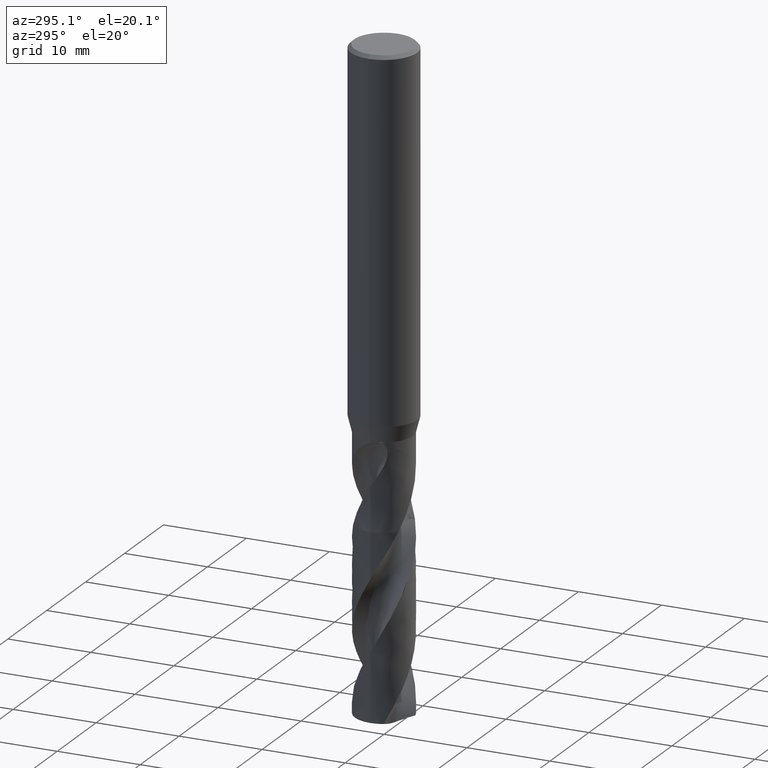
[diagram: clean part render]
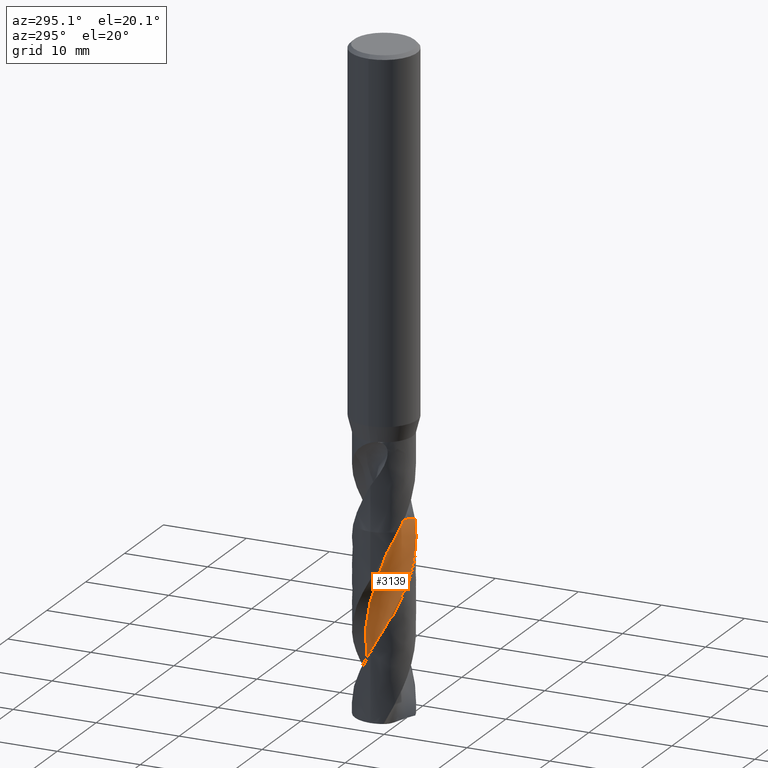
[diagram: same view with one face highlighted and labeled with its STEP entity id]
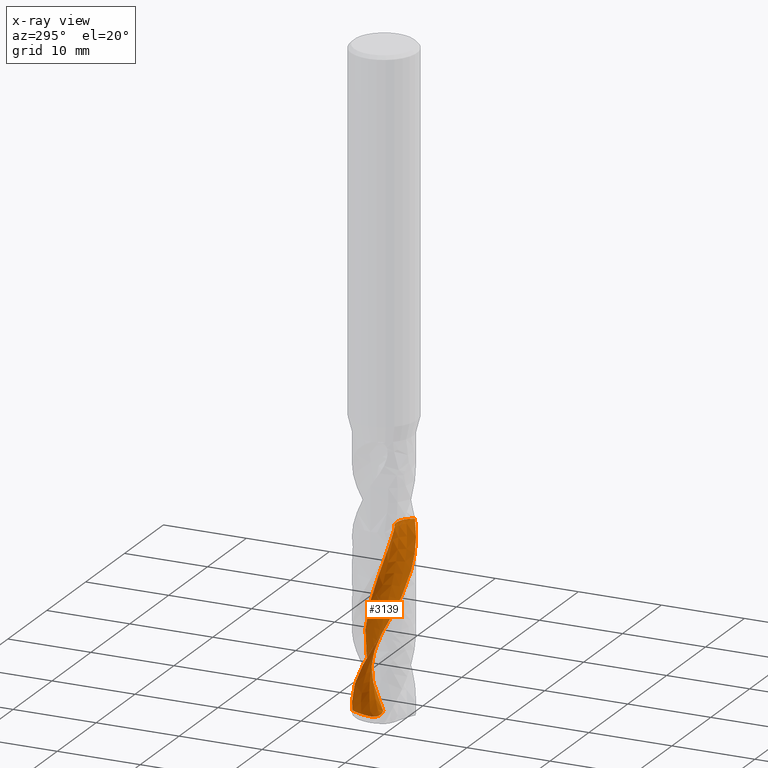
[diagram: x-ray of the same camera — body ghosted, the highlighted face saturated]
A machine part, auxiliary view. The second image highlights one B-rep face of the part: STEP entity #3139.
The next image is the same camera in x-ray: the body ghosted, the highlighted face saturated — about 0% of this face is hidden behind the body in this view.
In plain terms, the highlighted face is a freeform B-spline surface patch.
Its self-contained STEP definition (entity closure, byte-faithful):
#1687 = VERTEX_POINT('', #1688);
#1688 = CARTESIAN_POINT('', (-1.046951420476, -1.81512449101257, -55.5));
#1694 = EDGE_CURVE('', #1687, #1695, #1697, .T.);
#1695 = VERTEX_POINT('', #1696);
#1696 = CARTESIAN_POINT('', (2.27351250297305, -2.66104131851146, -55.5));
#1697 = B_SPLINE_CURVE_WITH_KNOTS('', 3, (#1698, #1699, #1700, #1701, #1702, #1703, #1704, #1705, #1706, #1707, #1708, #1709, #1710, #1711, #1712, #1713, #1714, #1715, #1716, #1717, #1718, #1719, #1720, #1721, #1722, #1723, #1724, #1725, #1726, #1727, #1728, #1729, #1730, #1731, #1732, #1733, #1734, #1735, #1736, #1737, #1738, #1739, #1740, #1741, #1742, #1743, #1744, #1745, #1746, #1747, #1748, #1749, #1750, #1751, #1752, #1753, #1754, #1755, #1756, #1757, #1758, #1759, #1760, #1761, #1762, #1763, #1764), .UNSPECIFIED., .F., .U., (4, 3, 3, 3, 3, 3, 3, 3, 3, 3, 3, 3, 3, 3, 3, 3, 3, 3, 3, 3, 3, 3, 4), (0., 0.198193263042199, 0.396153726300257, 0.593886962469287, 0.791397362451865, 0.988688222865556, 1.18576181065397, 1.38261940752312, 1.57926133604613, 1.77568696853248, 1.97189471908936, 2.01077654881468, 2.0367333169394, 2.23490098607553, 2.43283652115598, 2.63054536150199, 2.82803177536099, 3.02529894476461, 3.22234902783383, 3.41918320114924, 3.61580168394313, 3.81220374513392, 4.00604219358213), .UNSPECIFIED.);
#1698 = CARTESIAN_POINT('', (-1.046951420476, -1.81512449101257, -55.5));
#1699 = CARTESIAN_POINT('', (-0.996622528766035, -1.7723283418497, -55.5));
#1700 = CARTESIAN_POINT('', (-0.944213754496615, -1.73186481295462, -55.5));
#1701 = CARTESIAN_POINT('', (-0.890074604069016, -1.69400374964544, -55.5));
#1702 = CARTESIAN_POINT('', (-0.835999046027654, -1.65618715831897, -55.5));
#1703 = CARTESIAN_POINT('', (-0.780077188562678, -1.62088299294674, -55.5));
#1704 = CARTESIAN_POINT('', (-0.722681092174954, -1.58832613995863, -55.5));
#1705 = CARTESIAN_POINT('', (-0.665350877366253, -1.55580665705347, -55.5));
#1706 = CARTESIAN_POINT('', (-0.606422889559742, -1.52595617399591, -55.5));
#1707 = CARTESIAN_POINT('', (-0.546288291668799, -1.49897283775064, -55.5));
#1708 = CARTESIAN_POINT('', (-0.486221462680683, -1.47201991047385, -55.5));
#1709 = CARTESIAN_POINT('', (-0.424818065480778, -1.44786812052555, -55.5));
#1710 = CARTESIAN_POINT('', (-0.362484778061942, -1.42667742650586, -55.5));
#1711 = CARTESIAN_POINT('', (-0.300220776225276, -1.40551028666777, -55.5));
#1712 = CARTESIAN_POINT('', (-0.236891725365652, -1.38725099697157, -55.5));
#1713 = CARTESIAN_POINT('', (-0.172916126815252, -1.37202022142469, -55.5));
#1714 = CARTESIAN_POINT('', (-0.109010983359535, -1.3568062192376, -55.5));
#1715 = CARTESIAN_POINT('', (-0.0443201823901802, -1.34458059203248, -55.5));
#1716 = CARTESIAN_POINT('', (0.0207297153485082, -1.33542395363018, -55.5));
#1717 = CARTESIAN_POINT('', (0.0857083189712843, -1.32627735082305, -55.5));
#1718 = CARTESIAN_POINT('', (0.151187814939867, -1.32017292798672, -55.5));
#1719 = CARTESIAN_POINT('', (0.216737386321088, -1.31715084866685, -55.5));
#1720 = CARTESIAN_POINT('', (0.282215144534442, -1.31413208020142, -55.5));
#1721 = CARTESIAN_POINT('', (0.34790618952166, -1.3141822807506, -55.5));
#1722 = CARTESIAN_POINT('', (0.413379257425773, -1.31730112074613, -55.5));
#1723 = CARTESIAN_POINT('', (0.478780308312954, -1.32041653017762, -55.5));
#1724 = CARTESIAN_POINT('', (0.54410674561694, -1.32660062364291, -55.5));
#1725 = CARTESIAN_POINT('', (0.60893064055001, -1.3358128914842, -55.5));
#1726 = CARTESIAN_POINT('', (0.673682630634796, -1.34501494076763, -55.5));
#1727 = CARTESIAN_POINT('', (0.738074347710555, -1.35725849513149, -55.5));
#1728 = CARTESIAN_POINT('', (0.801684919704056, -1.3724635292194, -55.5));
#1729 = CARTESIAN_POINT('', (0.814290412718281, -1.37547665966249, -55.5));
#1730 = CARTESIAN_POINT('', (0.826868549943651, -1.37860662221833, -55.5));
#1731 = CARTESIAN_POINT('', (0.839416097829345, -1.38185261224526, -55.5));
#1732 = CARTESIAN_POINT('', (0.847792601540809, -1.38401957329261, -55.5));
#1733 = CARTESIAN_POINT('', (0.856155872862537, -1.38623834454429, -55.5));
#1734 = CARTESIAN_POINT('', (0.864504953579739, -1.38850867178646, -55.5));
#1735 = CARTESIAN_POINT('', (0.928246242834551, -1.40584154834474, -55.5));
#1736 = CARTESIAN_POINT('', (0.991238748929512, -1.42620778868461, -55.5));
#1737 = CARTESIAN_POINT('', (1.05306249242292, -1.44947160836477, -55.5));
#1738 = CARTESIAN_POINT('', (1.11481381544342, -1.47270817675396, -55.5));
#1739 = CARTESIAN_POINT('', (1.17553611147196, -1.49888707438941, -55.5));
#1740 = CARTESIAN_POINT('', (1.23482548319853, -1.52783417105826, -55.5));
#1741 = CARTESIAN_POINT('', (1.29404695105744, -1.55674811473924, -55.5));
#1742 = CARTESIAN_POINT('', (1.35196986084809, -1.58848790329939, -55.5));
#1743 = CARTESIAN_POINT('', (1.40820981605862, -1.62284290049731, -55.5));
#1744 = CARTESIAN_POINT('', (1.46438650016986, -1.65715924762109, -55.5));
#1745 = CARTESIAN_POINT('', (1.51900808164713, -1.6941606926302, -55.5));
#1746 = CARTESIAN_POINT('', (1.57171288654245, -1.7336022323897, -55.5));
#1747 = CARTESIAN_POINT('', (1.62435917988744, -1.77299998514261, -55.5));
#1748 = CARTESIAN_POINT('', (1.67520896373518, -1.81491921734901, -55.5));
#1749 = CARTESIAN_POINT('', (1.72392628483998, -1.85908297793752, -55.5));
#1750 = CARTESIAN_POINT('', (1.77258999406048, -1.9031981376923, -55.5));
#1751 = CARTESIAN_POINT('', (1.81923293437107, -1.94964986980913, -55.5));
#1752 = CARTESIAN_POINT('', (1.86354762295835, -1.99813195197048, -55.5));
#1753 = CARTESIAN_POINT('', (1.90781375549656, -2.04656091182778, -55.5));
#1754 = CARTESIAN_POINT('', (1.94985385795757, -2.09712200855222, -55.5));
#1755 = CARTESIAN_POINT('', (1.98939139667252, -2.14948265861613, -55.5));
#1756 = CARTESIAN_POINT('', (2.02888561022597, -2.20178593197696, -55.5));
#1757 = CARTESIAN_POINT('', (2.06596920661062, -2.25599930036608, -55.5));
#1758 = CARTESIAN_POINT('', (2.10039878876026, -2.3117669359755, -55.5));
#1759 = CARTESIAN_POINT('', (2.13479047363159, -2.36747318711623, -55.5));
#1760 = CARTESIAN_POINT('', (2.16660911478858, -2.42485195189315, -55.5));
#1761 = CARTESIAN_POINT('', (2.19564633028439, -2.48352745377164, -55.5));
#1762 = CARTESIAN_POINT('', (2.22430452646033, -2.5414370713036, -55.5));
#1763 = CARTESIAN_POINT('', (2.25031515757431, -2.6007344860766, -55.5));
#1764 = CARTESIAN_POINT('', (2.27351250036778, -2.66104131951358, -55.5));
#2007 = VERTEX_POINT('', #2008);
#2008 = CARTESIAN_POINT('', (1.86289702991476, 0.95960238742683, -78.2372915301283));
#2036 = EDGE_CURVE('', #2007, #1687, #2037, .T.);
#2037 = (
   BOUNDED_CURVE ()
   B_SPLINE_CURVE (3, (#2038, #2039, #2040, #2041, #2042, #2043, #2044, #2045, #2046, #2047, #2048, #2049, #2050, #2051, #2052, #2053, #2054, #2055, #2056, #2057, #2058, #2059, #2060, #2061, #2062, #2063, #2064, #2065, #2066, #2067, #2068, #2069, #2070, #2071, #2072, #2073, #2074, #2075, #2076), .UNSPECIFIED., .F., .U.)
   B_SPLINE_CURVE_WITH_KNOTS ((4, 1, 1, 1, 1, 1, 1, 1, 1, 1, 1, 1, 1, 1, 1, 1, 1, 1, 1, 1, 1, 1, 1, 1, 1, 1, 1, 1, 1, 1, 1, 1, 1, 1, 1, 1, 4), (0.81270846987174, 1.28490566037736, 1.92735849056604, 2.56981132075472, 3.2122641509434, 3.85471698113207, 4.49716981132075, 5.13962264150943, 5.78207547169811, 6.42452830188679, 7.06698113207547, 7.70943396226415, 8.35188679245283, 8.99433962264151, 9.63679245283019, 10.2792452830189, 10.9216981132075, 11.5641509433962, 12.2066037735849, 12.8490566037736, 13.4915094339623, 14.1339622641509, 14.7764150943396, 15.4188679245283, 16.061320754717, 16.7037735849057, 17.3462264150943, 17.988679245283, 18.6311320754717, 19.2735849056604, 19.9160377358491, 20.5584905660377, 21.2009433962264, 21.8433962264151, 22.4858490566038, 23.1283018867924, 23.55), .UNSPECIFIED.)
   CURVE ()
   GEOMETRIC_REPRESENTATION_ITEM ()
   RATIONAL_B_SPLINE_CURVE ((1., 1., 1., 1., 1., 1., 1., 1., 1., 1., 1., 1., 1., 1., 1., 1., 1., 1., 1., 1., 1., 1., 1., 1., 1., 1., 1., 1., 1., 1., 1., 1., 1., 1., 1., 1., 1., 1., 1.))
   REPRESENTATION_ITEM ('')
);
#2038 = CARTESIAN_POINT('', (1.86289702991476, 0.959602387426832, -78.2372915301283));
#2039 = CARTESIAN_POINT('', (1.83704920662887, 1.00688443852683, -78.0798924666264));
#2040 = CARTESIAN_POINT('', (1.77184820781061, 1.11606973005743, -77.7083424597283));
#2041 = CARTESIAN_POINT('', (1.65420540262695, 1.27800430281574, -77.122641509434));
#2042 = CARTESIAN_POINT('', (1.50783877451623, 1.44095037962767, -76.4801886792453));
#2043 = CARTESIAN_POINT('', (1.34577054116702, 1.58756373258715, -75.8377358490566));
#2044 = CARTESIAN_POINT('', (1.16978095045441, 1.71636895656266, -75.1952830188679));
#2045 = CARTESIAN_POINT('', (0.981783968663531, 1.82607944599685, -74.5528301886793));
#2046 = CARTESIAN_POINT('', (0.783808890857222, 1.9156100702152, -73.9103773584906));
#2047 = CARTESIAN_POINT('', (0.577979299252018, 1.98408682329468, -73.2679245283019));
#2048 = CARTESIAN_POINT('', (0.366491666945983, 2.03085467587675, -72.6254716981132));
#2049 = CARTESIAN_POINT('', (0.151593245873243, 2.0554832201279, -71.9830188679245));
#2050 = CARTESIAN_POINT('', (-0.0644404046662435, 2.05777016138579, -71.3405660377358));
#2051 = CARTESIAN_POINT('', (-0.279328081799948, 2.03774261028639, -70.6981132075472));
#2052 = CARTESIAN_POINT('', (-0.49080557652085, 1.9956561800751, -70.0556603773585));
#2053 = CARTESIAN_POINT('', (-0.696648081155714, 1.93199190421249, -69.4132075471698));
#2054 = CARTESIAN_POINT('', (-0.89469216253526, 1.84745101034328, -68.7707547169811));
#2055 = CARTESIAN_POINT('', (-1.08285710208653, 1.74294760436103, -68.1283018867925));
#2056 = CARTESIAN_POINT('', (-1.25916540991783, 1.61959933622045, -67.4858490566038));
#2057 = CARTESIAN_POINT('', (-1.42176232764968, 1.47871613622041, -66.8433962264151));
#2058 = CARTESIAN_POINT('', (-1.56893414377479, 1.32178712685008, -66.2009433962264));
#2059 = CARTESIAN_POINT('', (-1.69912515575136, 1.15046583077931, -65.5584905660377));
#2060 = CARTESIAN_POINT('', (-1.81095312474061, 0.966553810093789, -64.9160377358491));
#2061 = CARTESIAN_POINT('', (-1.90322308181562, 0.771982885326506, -64.2735849056604));
#2062 = CARTESIAN_POINT('', (-1.97493935850522, 0.568796095113638, -63.6311320754717));
#2063 = CARTESIAN_POINT('', (-2.02531572959262, 0.359127568365377, -62.988679245283));
#2064 = CARTESIAN_POINT('', (-2.0537835720822, 0.145181490439252, -62.3462264150943));
#2065 = CARTESIAN_POINT('', (-2.05999796099643, -0.0707896465064805, -61.7037735849057));
#2066 = CARTESIAN_POINT('', (-2.04384164034007, -0.286507313438294, -61.061320754717));
#2067 = CARTESIAN_POINT('', (-2.00542682498564, -0.499689528352486, -60.4188679245283));
#2068 = CARTESIAN_POINT('', (-1.94509481025618, -0.708073564523542, -59.7764150943396));
#2069 = CARTESIAN_POINT('', (-1.86341337559702, -0.909438515305056, -59.133962264151));
#2070 = CARTESIAN_POINT('', (-1.76117202235919, -1.10162773111042, -58.4915094339623));
#2071 = CARTESIAN_POINT('', (-1.6393749758928, -1.28257008606988, -57.8490566037736));
#2072 = CARTESIAN_POINT('', (-1.49923238251942, -1.45030298841626, -57.2066037735849));
#2073 = CARTESIAN_POINT('', (-1.34214835455115, -1.60298529815981, -56.5641509433962));
#2074 = CARTESIAN_POINT('', (-1.18946174537938, -1.723371096473, -55.9952830188679));
#2075 = CARTESIAN_POINT('', (-1.08803180901297, -1.79006336527039, -55.6405660377358));
#2076 = CARTESIAN_POINT('', (-1.046951420476, -1.81512449101257, -55.5));
#3013 = EDGE_CURVE('', #1695, #3014, #3016, .T.);
#3014 = VERTEX_POINT('', #3015);
#3015 = CARTESIAN_POINT('', (1.42035455528917, -3.19884243708084, -57.2561173635629));
#3016 = B_SPLINE_CURVE_WITH_KNOTS('', 3, (#3017, #3018, #3019, #3020, #3021, #3022, #3023, #3024, #3025, #3026, #3027, #3028, #3029), .UNSPECIFIED., .F., .U., (4, 3, 3, 3, 4), (4.22108998884229, 4.68101404682923, 5.34566818876505, 6.01013429872997, 6.24777782940563), .UNSPECIFIED.);
#3017 = CARTESIAN_POINT('', (2.27351250297305, -2.66104131851146, -55.5));
#3018 = CARTESIAN_POINT('', (2.21528860404127, -2.71078604110272, -55.6328111025407));
#3019 = CARTESIAN_POINT('', (2.1554225569631, -2.75862565120701, -55.7656713950018));
#3020 = CARTESIAN_POINT('', (2.09407522129526, -2.80443380516588, -55.8984925763996));
#3021 = CARTESIAN_POINT('', (2.00541980081817, -2.87063294986047, -56.0904376308489));
#3022 = CARTESIAN_POINT('', (1.91360269459129, -2.932637352559, -56.2824406128461));
#3023 = CARTESIAN_POINT('', (1.81909616396088, -2.99013196134598, -56.474398680909));
#3024 = CARTESIAN_POINT('', (1.72461636941483, -3.04761030479446, -56.666302443655));
#3025 = CARTESIAN_POINT('', (1.62739646706819, -3.10061346637828, -56.8582689516835));
#3026 = CARTESIAN_POINT('', (1.52792948044926, -3.14887781642507, -57.0501911150378));
#3027 = CARTESIAN_POINT('', (1.49235552787094, -3.1661393597587, -57.1188312756577));
#3028 = CARTESIAN_POINT('', (1.4564895373403, -3.18279773110637, -57.1874750361504));
#3029 = CARTESIAN_POINT('', (1.42035455528923, -3.19884243708081, -57.2561173635627));
#3139 = ADVANCED_FACE('', (#3140), #3316, .T.);
#3140 = FACE_OUTER_BOUND('', #3141, .T.);
#3141 = EDGE_LOOP('', (#3142, #3143, #3144, #3264, #3279, #3315));
#3142 = ORIENTED_EDGE('', *, *, #1694, .F.);
#3143 = ORIENTED_EDGE('', *, *, #2036, .F.);
#3144 = ORIENTED_EDGE('', *, *, #3145, .T.);
#3145 = EDGE_CURVE('', #2007, #3146, #3148, .T.);
#3146 = VERTEX_POINT('', #3147);
#3147 = CARTESIAN_POINT('', (-0.75652026555889, 3.41726163584218, -77.7261041800683));
#3148 = B_SPLINE_CURVE_WITH_KNOTS('', 3, (#3149, #3150, #3151, #3152, #3153, #3154, #3155, #3156, #3157, #3158, #3159, #3160, #3161, #3162, #3163, #3164, #3165, #3166, #3167, #3168, #3169, #3170, #3171, #3172, #3173, #3174, #3175, #3176, #3177, #3178, #3179, #3180, #3181, #3182, #3183, #3184, #3185, #3186, #3187, #3188, #3189, #3190, #3191, #3192, #3193, #3194, #3195, #3196, #3197, #3198, #3199, #3200, #3201, #3202, #3203, #3204, #3205, #3206, #3207, #3208, #3209, #3210, #3211, #3212, #3213, #3214, #3215, #3216, #3217, #3218, #3219, #3220, #3221, #3222, #3223, #3224, #3225, #3226, #3227, #3228, #3229, #3230, #3231, #3232, #3233, #3234, #3235, #3236, #3237, #3238, #3239, #3240, #3241, #3242, #3243, #3244, #3245, #3246, #3247, #3248, #3249, #3250, #3251, #3252, #3253, #3254, #3255, #3256, #3257, #3258, #3259, #3260, #3261, #3262, #3263), .UNSPECIFIED., .F., .U., (4, 3, 3, 3, 3, 3, 3, 3, 3, 3, 3, 3, 3, 3, 3, 3, 3, 3, 3, 3, 3, 3, 3, 3, 3, 3, 3, 3, 3, 3, 3, 3, 3, 3, 3, 3, 3, 3, 4), (0., 0.13153171645774, 0.262945349203813, 0.394199294068661, 0.525251234332871, 0.656068764732956, 0.743300369350529, 0.830471039566128, 0.917596312866661, 1.00469921335103, 1.09180822080205, 1.17895322986164, 1.26616030443826, 1.3534468451724, 1.44081886479517, 1.52827119353682, 1.61579015055896, 1.70335735951492, 1.79095335640287, 1.87856018513603, 1.96616280500047, 2.02455575539226, 2.0505126224443, 2.13844518629317, 2.16442361269115, 2.19041706034893, 2.32294156662581, 2.45517298031401, 2.58715973706179, 2.71894233483653, 2.8505535642628, 2.98201948313424, 3.11336055726215, 3.24459272289223, 3.37572828766746, 3.57205047214535, 3.76811130288421, 3.96393319284557, 4.17626911224534), .UNSPECIFIED.);
#3149 = CARTESIAN_POINT('', (1.86289702991476, 0.959602387426829, -78.2372915301283));
#3150 = CARTESIAN_POINT('', (1.8228182880734, 0.94953006845307, -78.2519384032131));
#3151 = CARTESIAN_POINT('', (1.78225042892496, 0.941064888507004, -78.2664540212596));
#3152 = CARTESIAN_POINT('', (1.74135627742777, 0.934284852083333, -78.2807364414913));
#3153 = CARTESIAN_POINT('', (1.70049883900119, 0.927510902494744, -78.2950060395595));
#3154 = CARTESIAN_POINT('', (1.65925218456258, 0.922408879518861, -78.309065238623));
#3155 = CARTESIAN_POINT('', (1.61779047065386, 0.919041403737201, -78.3227920184146));
#3156 = CARTESIAN_POINT('', (1.57637913913779, 0.915678019959251, -78.3365021180465));
#3157 = CARTESIAN_POINT('', (1.53468528616945, 0.91403988365765, -78.3499032389446));
#3158 = CARTESIAN_POINT('', (1.4928938188254, 0.914169553407941, -78.3628505940133));
#3159 = CARTESIAN_POINT('', (1.45116667007138, 0.914299023591764, -78.375778022631));
#3160 = CARTESIAN_POINT('', (1.40926979623308, 0.916191653065853, -78.3882754331268));
#3161 = CARTESIAN_POINT('', (1.36739833563515, 0.919863696023388, -78.4001744668796));
#3162 = CARTESIAN_POINT('', (1.32560176964291, 0.923529170874498, -78.4120522170796));
#3163 = CARTESIAN_POINT('', (1.28375386655862, 0.928975126784014, -78.4233550184674));
#3164 = CARTESIAN_POINT('', (1.24205939056462, 0.936183361887287, -78.4338945442026));
#3165 = CARTESIAN_POINT('', (1.21425672502338, 0.940989949449338, -78.4409224993932));
#3166 = CARTESIAN_POINT('', (1.18649266493109, 0.946584170290594, -78.447618264834));
#3167 = CARTESIAN_POINT('', (1.15883025819448, 0.952949908438815, -78.4539232058106));
#3168 = CARTESIAN_POINT('', (1.13118717464033, 0.959311199890809, -78.4602237425599));
#3169 = CARTESIAN_POINT('', (1.10362095836102, 0.966448697212681, -78.4661394003898));
#3170 = CARTESIAN_POINT('', (1.07619587165628, 0.97433626819722, -78.4716123980922));
#3171 = CARTESIAN_POINT('', (1.04878506744276, 0.98221973147685, -78.4770825455559));
#3172 = CARTESIAN_POINT('', (1.02149017372085, 0.990859763042363, -78.4821152249813));
#3173 = CARTESIAN_POINT('', (0.99437574223325, 1.00021934694556, -78.4866571946478));
#3174 = CARTESIAN_POINT('', (0.967268273434753, 1.00957652741009, -78.4911979979862));
#3175 = CARTESIAN_POINT('', (0.940316005255463, 1.01966158787988, -78.4952522680795));
#3176 = CARTESIAN_POINT('', (0.913582285398176, 1.03042655632265, -78.4987756560632));
#3177 = CARTESIAN_POINT('', (0.886846691183839, 1.0411922795199, -78.502299291079));
#3178 = CARTESIAN_POINT('', (0.860304858816269, 1.05264793048939, -78.5052949887081));
#3179 = CARTESIAN_POINT('', (0.83401688424383, 1.06473569745196, -78.5077316011959));
#3180 = CARTESIAN_POINT('', (0.807718045015734, 1.07682846021309, -78.5101692207204));
#3181 = CARTESIAN_POINT('', (0.781649347009704, 1.08956470890378, -78.5120493659192));
#3182 = CARTESIAN_POINT('', (0.755865290465559, 1.1028792650395, -78.5133573674199));
#3183 = CARTESIAN_POINT('', (0.730062870267341, 1.11620330393067, -78.5146663004918));
#3184 = CARTESIAN_POINT('', (0.704523026824387, 1.13011785147818, -78.5154034243407));
#3185 = CARTESIAN_POINT('', (0.679292512953342, 1.14455395201702, -78.5155718799174));
#3186 = CARTESIAN_POINT('', (0.654039008149515, 1.15900320723907, -78.5157404889967));
#3187 = CARTESIAN_POINT('', (0.629074887284922, 1.17398643788223, -78.5153396986857));
#3188 = CARTESIAN_POINT('', (0.60443774217691, 1.1894349646655, -78.5143894295008));
#3189 = CARTESIAN_POINT('', (0.579776470144347, 1.2048986200458, -78.5134382297263));
#3190 = CARTESIAN_POINT('', (0.555424624005128, 1.22083963123891, -78.5119360586577));
#3191 = CARTESIAN_POINT('', (0.531410309800038, 1.23719328413843, -78.5099165272524));
#3192 = CARTESIAN_POINT('', (0.507373922528275, 1.25356196870897, -78.5078951395688));
#3193 = CARTESIAN_POINT('', (0.483659975422324, 1.27035453591986, -78.5053544538246));
#3194 = CARTESIAN_POINT('', (0.460287849208915, 1.28751289984222, -78.5023374984739));
#3195 = CARTESIAN_POINT('', (0.436897916213189, 1.30468433639855, -78.4993182445619));
#3196 = CARTESIAN_POINT('', (0.41383704634985, 1.32223171601665, -78.49582060033));
#3197 = CARTESIAN_POINT('', (0.391117424733337, 1.34010495211428, -78.4918925832553));
#3198 = CARTESIAN_POINT('', (0.368385277079997, 1.35798804228506, -78.4879624005421));
#3199 = CARTESIAN_POINT('', (0.345983702882939, 1.37620594210247, -78.4835997208117));
#3200 = CARTESIAN_POINT('', (0.323919548065859, 1.39471676797634, -78.4788537557019));
#3201 = CARTESIAN_POINT('', (0.301848139604453, 1.41323367932904, -78.4741062303445));
#3202 = CARTESIAN_POINT('', (0.28010524635887, 1.43205131548829, -78.4689733918311));
#3203 = CARTESIAN_POINT('', (0.258694175542854, 1.4511353788369, -78.4635028665226));
#3204 = CARTESIAN_POINT('', (0.237280457101226, 1.4702218020607, -78.4580316647462));
#3205 = CARTESIAN_POINT('', (0.216191107544628, 1.48958142067367, -78.4522208847933));
#3206 = CARTESIAN_POINT('', (0.195427409164584, 1.50918646752702, -78.4461148299856));
#3207 = CARTESIAN_POINT('', (0.174664708328703, 1.52879057250095, -78.4400090685294));
#3208 = CARTESIAN_POINT('', (0.154221362485228, 1.54864600586596, -78.4336062799455));
#3209 = CARTESIAN_POINT('', (0.134097774404333, 1.56873033939877, -78.4269465689845));
#3210 = CARTESIAN_POINT('', (0.120684069627798, 1.58211787841813, -78.4225074303792));
#3211 = CARTESIAN_POINT('', (0.107410448190271, 1.59560917741273, -78.4179534084827));
#3212 = CARTESIAN_POINT('', (0.0942769940856678, 1.60919865453723, -78.4132952840587));
#3213 = CARTESIAN_POINT('', (0.088438903702497, 1.61523945652892, -78.4112246519777));
#3214 = CARTESIAN_POINT('', (0.0826283075640688, 1.62129987625373, -78.4091333671804));
#3215 = CARTESIAN_POINT('', (0.0768452160792648, 1.62737946863634, -78.4070223213308));
#3216 = CARTESIAN_POINT('', (0.0572541745174388, 1.64797494898792, -78.3998708544919));
#3217 = CARTESIAN_POINT('', (0.0379758928784995, 1.66879328136131, -78.3924918599027));
#3218 = CARTESIAN_POINT('', (0.0190111019786277, 1.68981915778946, -78.3849172031521));
#3219 = CARTESIAN_POINT('', (0.0134082240119142, 1.69603095418585, -78.382679378457));
#3220 = CARTESIAN_POINT('', (0.00783247980689188, 1.70226113696815, -78.3804243579035));
#3221 = CARTESIAN_POINT('', (0.0022838996399837, 1.70850935482725, -78.3781528942646));
#3222 = CARTESIAN_POINT('', (-0.0032678888299556, 1.71476118553428, -78.3758801172188));
#3223 = CARTESIAN_POINT('', (-0.00879258071631859, 1.72103118358778, -78.3735908375445));
#3224 = CARTESIAN_POINT('', (-0.0142901396033928, 1.72731901400275, -78.3712857794412));
#3225 = CARTESIAN_POINT('', (-0.0423187907784795, 1.75937677072159, -78.3595337144166));
#3226 = CARTESIAN_POINT('', (-0.0696497330859854, 1.79190586297139, -78.3473697970551));
#3227 = CARTESIAN_POINT('', (-0.0962754069850947, 1.82486744845573, -78.3348788620757));
#3228 = CARTESIAN_POINT('', (-0.122842195264423, 1.85775613575175, -78.3224155521793));
#3229 = CARTESIAN_POINT('', (-0.148717655813959, 1.89108900222903, -78.3096213709082));
#3230 = CARTESIAN_POINT('', (-0.173889379844865, 1.92483369763015, -78.2965648044871));
#3231 = CARTESIAN_POINT('', (-0.199014530699133, 1.95851595798878, -78.2835323955602));
#3232 = CARTESIAN_POINT('', (-0.223448040854825, 1.99262141735132, -78.2702334386015));
#3233 = CARTESIAN_POINT('', (-0.247172728030695, 2.02712123561024, -78.2567236899264));
#3234 = CARTESIAN_POINT('', (-0.270860717526519, 2.0615676890647, -78.2432348383207));
#3235 = CARTESIAN_POINT('', (-0.293850656387028, 2.09641989857294, -78.2295307807928));
#3236 = CARTESIAN_POINT('', (-0.316120918093217, 2.13165052113231, -78.2156575404647));
#3237 = CARTESIAN_POINT('', (-0.338362219845416, 2.16683533025573, -78.201802340715));
#3238 = CARTESIAN_POINT('', (-0.359893642840119, 2.20241022757445, -78.1877733108844));
#3239 = CARTESIAN_POINT('', (-0.38068950459377, 2.2383479618526, -78.1736091220384));
#3240 = CARTESIAN_POINT('', (-0.401462405858235, 2.2742460176616, -78.1594605717223));
#3241 = CARTESIAN_POINT('', (-0.421508802374244, 2.31051905860554, -78.145171976731));
#3242 = CARTESIAN_POINT('', (-0.440799323352114, 2.34713888692985, -78.130776516066));
#3243 = CARTESIAN_POINT('', (-0.460071525360593, 2.38372393975406, -78.1163947258459));
#3244 = CARTESIAN_POINT('', (-0.478596317024385, 2.42066856429903, -78.1019009267271));
#3245 = CARTESIAN_POINT('', (-0.496340963654553, 2.45794278970748, -78.0873242540439));
#3246 = CARTESIAN_POINT('', (-0.514070896359, 2.49518610719224, -78.072759668391));
#3247 = CARTESIAN_POINT('', (-0.531028650065308, 2.53277259276865, -78.0581067807277));
#3248 = CARTESIAN_POINT('', (-0.547178411580874, 2.57066978821116, -78.0433918173638));
#3249 = CARTESIAN_POINT('', (-0.563316285151433, 2.6085390872804, -78.0286876857807));
#3250 = CARTESIAN_POINT('', (-0.578653681226691, 2.64673358659774, -78.013915731584));
#3251 = CARTESIAN_POINT('', (-0.593151971017683, 2.68521767488271, -77.999100172094));
#3252 = CARTESIAN_POINT('', (-0.614857264527035, 2.74283194826992, -77.9769198962221));
#3253 = CARTESIAN_POINT('', (-0.634698813010202, 2.80114155132937, -77.9546246341072));
#3254 = CARTESIAN_POINT('', (-0.652536097715106, 2.86001024021275, -77.9322908559779));
#3255 = CARTESIAN_POINT('', (-0.670349636550107, 2.91880056020474, -77.9099868096716));
#3256 = CARTESIAN_POINT('', (-0.686181976648814, 2.97820825418588, -77.8876215664051));
#3257 = CARTESIAN_POINT('', (-0.699882223797475, 3.03807289637893, -77.8652693357471));
#3258 = CARTESIAN_POINT('', (-0.713565774354097, 3.09786458109191, -77.8429443459171));
#3259 = CARTESIAN_POINT('', (-0.725137279137223, 3.15817899148427, -77.8206073142212));
#3260 = CARTESIAN_POINT('', (-0.734438529834154, 3.21882599677015, -77.7983336128474));
#3261 = CARTESIAN_POINT('', (-0.744524172551065, 3.28458747843474, -77.7741815282129));
#3262 = CARTESIAN_POINT('', (-0.751952620845318, 3.35082214178241, -77.7500738714051));
#3263 = CARTESIAN_POINT('', (-0.75652026555889, 3.41726163584218, -77.7261041800683));
#3264 = ORIENTED_EDGE('', *, *, #3265, .F.);
#3265 = EDGE_CURVE('', #3266, #3146, #3268, .T.);
#3266 = VERTEX_POINT('', #3267);
#3267 = CARTESIAN_POINT('', (-1.43178876151675, 3.19374090094897, -76.4695561598546));
#3268 = B_SPLINE_CURVE_WITH_KNOTS('', 3, (#3269, #3270, #3271, #3272, #3273, #3274, #3275, #3276, #3277, #3278), .UNSPECIFIED., .F., .U., (4, 3, 3, 4), (0., 0.664250491699968, 1.3283210976726, 1.4443930382356), .UNSPECIFIED.);
#3269 = CARTESIAN_POINT('', (-1.43178876151672, 3.19374090094899, -76.4695561598547));
#3270 = CARTESIAN_POINT('', (-1.332097652481, 3.23843350876137, -76.6621429362552));
#3271 = CARTESIAN_POINT('', (-1.2302990620593, 3.27845896527895, -76.8547896278938));
#3272 = CARTESIAN_POINT('', (-1.12689521360082, 3.31362447745111, -77.0473939989133));
#3273 = CARTESIAN_POINT('', (-1.02351936794658, 3.34878046644818, -77.2399462107281));
#3274 = CARTESIAN_POINT('', (-0.918482806206635, 3.37909831492291, -77.4325577955334));
#3275 = CARTESIAN_POINT('', (-0.812302593221454, 3.40443306543757, -77.6251266821394));
#3276 = CARTESIAN_POINT('', (-0.793743507395736, 3.40886128983037, -77.6587855192561));
#3277 = CARTESIAN_POINT('', (-0.77514848092704, 3.41313768399448, -77.6924448757475));
#3278 = CARTESIAN_POINT('', (-0.756520265558889, 3.41726163584218, -77.7261041800683));
#3279 = ORIENTED_EDGE('', *, *, #3280, .T.);
#3280 = EDGE_CURVE('', #3266, #3014, #3281, .T.);
#3281 = (
   BOUNDED_CURVE ()
   B_SPLINE_CURVE (3, (#3282, #3283, #3284, #3285, #3286, #3287, #3288, #3289, #3290, #3291, #3292, #3293, #3294, #3295, #3296, #3297, #3298, #3299, #3300, #3301, #3302, #3303, #3304, #3305, #3306, #3307, #3308, #3309, #3310, #3311, #3312, #3313, #3314), .UNSPECIFIED., .F., .U.)
   B_SPLINE_CURVE_WITH_KNOTS ((4, 1, 1, 1, 1, 1, 1, 1, 1, 1, 1, 1, 1, 1, 1, 1, 1, 1, 1, 1, 1, 1, 1, 1, 1, 1, 1, 1, 1, 1, 4), (2.5804438401454, 3.2122641509434, 3.85471698113207, 4.49716981132075, 5.13962264150943, 5.78207547169811, 6.42452830188679, 7.06698113207547, 7.70943396226415, 8.35188679245283, 8.99433962264151, 9.63679245283019, 10.2792452830189, 10.9216981132075, 11.5641509433962, 12.2066037735849, 12.8490566037736, 13.4915094339623, 14.1339622641509, 14.7764150943396, 15.4188679245283, 16.061320754717, 16.7037735849057, 17.3462264150943, 17.988679245283, 18.6311320754717, 19.2735849056604, 19.9160377358491, 20.5584905660377, 21.2009433962264, 21.7938826364372), .UNSPECIFIED.)
   CURVE ()
   GEOMETRIC_REPRESENTATION_ITEM ()
   RATIONAL_B_SPLINE_CURVE ((1., 1., 1., 1., 1., 1., 1., 1., 1., 1., 1., 1., 1., 1., 1., 1., 1., 1., 1., 1., 1., 1., 1., 1., 1., 1., 1., 1., 1., 1., 1., 1., 1.))
   REPRESENTATION_ITEM ('')
);
#3282 = CARTESIAN_POINT('', (-1.43178876151675, 3.19374090094897, -76.4695561598546));
#3283 = CARTESIAN_POINT('', (-1.54061396834283, 3.14219347825785, -76.2589493895886));
#3284 = CARTESIAN_POINT('', (-1.75455617042233, 3.02715768835124, -75.8341916759264));
#3285 = CARTESIAN_POINT('', (-2.05631492686901, 2.82245593190597, -75.1952830188679));
#3286 = CARTESIAN_POINT('', (-2.33630195527422, 2.58681226751588, -74.5528301886793));
#3287 = CARTESIAN_POINT('', (-2.58997800395984, 2.32396186239591, -73.9103773584906));
#3288 = CARTESIAN_POINT('', (-2.81475872838165, 2.03677299705577, -73.2679245283019));
#3289 = CARTESIAN_POINT('', (-3.00836529371641, 1.72835315398894, -72.6254716981132));
#3290 = CARTESIAN_POINT('', (-3.16884581303259, 1.4020171978007, -71.9830188679245));
#3291 = CARTESIAN_POINT('', (-3.29459357920429, 1.06125376894431, -71.3405660377358));
#3292 = CARTESIAN_POINT('', (-3.38436192294598, 0.70969012952519, -70.6981132075472));
#3293 = CARTESIAN_POINT('', (-3.43727558079247, 0.351055810075322, -70.0556603773585));
#3294 = CARTESIAN_POINT('', (-3.45283848184354, -0.0108546117672331, -69.4132075471698));
#3295 = CARTESIAN_POINT('', (-3.43093789487288, -0.372219256760979, -68.7707547169811));
#3296 = CARTESIAN_POINT('', (-3.37184490850539, -0.729226868632887, -68.1283018867925));
#3297 = CARTESIAN_POINT('', (-3.27621124884731, -1.07811457173911, -67.4858490566038));
#3298 = CARTESIAN_POINT('', (-3.1450624703259, -1.41520511834856, -66.8433962264151));
#3299 = CARTESIAN_POINT('', (-2.97978758651888, -1.73694328712655, -66.2009433962264));
#3300 = CARTESIAN_POINT('', (-2.78212523816867, -2.03993110214023, -65.5584905660377));
#3301 = CARTESIAN_POINT('', (-2.55414652518399, -2.32096155203493, -64.9160377358491));
#3302 = CARTESIAN_POINT('', (-2.29823465803023, -2.57705050187782, -64.2735849056604));
#3303 = CARTESIAN_POINT('', (-2.01706161128389, -2.80546650544944, -63.6311320754717));
#3304 = CARTESIAN_POINT('', (-1.71356198815251, -3.00375824334916, -62.988679245283));
#3305 = CARTESIAN_POINT('', (-1.39090432899921, -3.16977933217882, -62.3462264150943));
#3306 = CARTESIAN_POINT('', (-1.0524601201378, -3.30171027167475, -61.7037735849057));
#3307 = CARTESIAN_POINT('', (-0.701770777649307, -3.39807732161283, -61.061320754717));
#3308 = CARTESIAN_POINT('', (-0.342512907850129, -3.4577681218056, -60.4188679245283));
#3309 = CARTESIAN_POINT('', (0.0215378684567372, -3.48004391121623, -59.7764150943396));
#3310 = CARTESIAN_POINT('', (0.38654411163468, -3.46454817325659, -59.133962264151));
#3311 = CARTESIAN_POINT('', (0.748644780888628, -3.41131177947382, -58.4915094339623));
#3312 = CARTESIAN_POINT('', (1.09486401658083, -3.32308035114152, -57.8655611337662));
#3313 = CARTESIAN_POINT('', (1.31613576742802, -3.24253161307834, -57.4537637769664));
#3314 = CARTESIAN_POINT('', (1.42035455528917, -3.19884243708084, -57.2561173635628));
#3315 = ORIENTED_EDGE('', *, *, #3013, .F.);
#3316 = (
   BOUNDED_SURFACE ()
   B_SPLINE_SURFACE (3, 2, ((#3317, #3318, #3319, #3320, #3321), (#3322, #3323, #3324, #3325, #3326), (#3327, #3328, #3329, #3330, #3331), (#3332, #3333, #3334, #3335, #3336), (#3337, #3338, #3339, #3340, #3341), (#3342, #3343, #3344, #3345, #3346), (#3347, #3348, #3349, #3350, #3351), (#3352, #3353, #3354, #3355, #3356), (#3357, #3358, #3359, #3360, #3361), (#3362, #3363, #3364, #3365, #3366), (#3367, #3368, #3369, #3370, #3371), (#3372, #3373, #3374, #3375, #3376), (#3377, #3378, #3379, #3380, #3381), (#3382, #3383, #3384, #3385, #3386), (#3387, #3388, #3389, #3390, #3391), (#3392, #3393, #3394, #3395, #3396), (#3397, #3398, #3399, #3400, #3401), (#3402, #3403, #3404, #3405, #3406), (#3407, #3408, #3409, #3410, #3411), (#3412, #3413, #3414, #3415, #3416), (#3417, #3418, #3419, #3420, #3421), (#3422, #3423, #3424, #3425, #3426), (#3427, #3428, #3429, #3430, #3431), (#3432, #3433, #3434, #3435, #3436), (#3437, #3438, #3439, #3440, #3441), (#3442, #3443, #3444, #3445, #3446), (#3447, #3448, #3449, #3450, #3451), (#3452, #3453, #3454, #3455, #3456), (#3457, #3458, #3459, #3460, #3461), (#3462, #3463, #3464, #3465, #3466), (#3467, #3468, #3469, #3470, #3471), (#3472, #3473, #3474, #3475, #3476), (#3477, #3478, #3479, #3480, #3481), (#3482, #3483, #3484, #3485, #3486), (#3487, #3488, #3489, #3490, #3491), (#3492, #3493, #3494, #3495, #3496), (#3497, #3498, #3499, #3500, #3501), (#3502, #3503, #3504, #3505, #3506), (#3507, #3508, #3509, #3510, #3511)), .UNSPECIFIED., .F., .F., .U.)
   B_SPLINE_SURFACE_WITH_KNOTS ((4, 1, 1, 1, 1, 1, 1, 1, 1, 1, 1, 1, 1, 1, 1, 1, 1, 1, 1, 1, 1, 1, 1, 1, 1, 1, 1, 1, 1, 1, 1, 1, 1, 1, 1, 1, 4), (3, 2, 3), (0.534259510998151, 1.28490566037736, 1.92735849056604, 2.56981132075472, 3.2122641509434, 3.85471698113207, 4.49716981132075, 5.13962264150943, 5.78207547169811, 6.42452830188679, 7.06698113207547, 7.70943396226415, 8.35188679245283, 8.99433962264151, 9.63679245283019, 10.2792452830189, 10.9216981132075, 11.5641509433962, 12.2066037735849, 12.8490566037736, 13.4915094339623, 14.1339622641509, 14.7764150943396, 15.4188679245283, 16.061320754717, 16.7037735849057, 17.3462264150943, 17.988679245283, 18.6311320754717, 19.2735849056604, 19.9160377358491, 20.5584905660377, 21.2009433962264, 21.8433962264151, 22.4858490566038, 23.1283018867924, 23.55), (0., 0.5, 1.), .UNSPECIFIED.)
   GEOMETRIC_REPRESENTATION_ITEM ()
   RATIONAL_B_SPLINE_SURFACE (((1., 0.887010833178222, 1., 0.887010833178222, 1.), (1., 0.887010833178222, 1., 0.887010833178222, 1.), (1., 0.887010833178222, 1., 0.887010833178222, 1.), (1., 0.887010833178222, 1., 0.887010833178222, 1.), (1., 0.887010833178222, 1., 0.887010833178222, 1.), (1., 0.887010833178222, 1., 0.887010833178222, 1.), (1., 0.887010833178222, 1., 0.887010833178222, 1.), (1., 0.887010833178222, 1., 0.887010833178222, 1.), (1., 0.887010833178222, 1., 0.887010833178222, 1.), (1., 0.887010833178222, 1., 0.887010833178222, 1.), (1., 0.887010833178222, 1., 0.887010833178222, 1.), (1., 0.887010833178222, 1., 0.887010833178222, 1.), (1., 0.887010833178222, 1., 0.887010833178222, 1.), (1., 0.887010833178222, 1., 0.887010833178222, 1.), (1., 0.887010833178222, 1., 0.887010833178222, 1.), (1., 0.887010833178222, 1., 0.887010833178222, 1.), (1., 0.887010833178222, 1., 0.887010833178222, 1.), (1., 0.887010833178222, 1., 0.887010833178222, 1.), (1., 0.887010833178222, 1., 0.887010833178222, 1.), (1., 0.887010833178221, 1., 0.887010833178221, 1.), (1., 0.887010833178222, 1., 0.887010833178222, 1.), (1., 0.887010833178222, 1., 0.887010833178222, 1.), (1., 0.887010833178222, 1., 0.887010833178222, 1.), (1., 0.887010833178222, 1., 0.887010833178222, 1.), (1., 0.887010833178222, 1., 0.887010833178222, 1.), (1., 0.887010833178222, 1., 0.887010833178222, 1.), (1., 0.887010833178222, 1., 0.887010833178222, 1.), (1., 0.887010833178222, 1., 0.887010833178222, 1.), (1., 0.887010833178222, 1., 0.887010833178222, 1.), (1., 0.887010833178222, 1., 0.887010833178222, 1.), (1., 0.887010833178222, 1., 0.887010833178222, 1.), (1., 0.887010833178222, 1., 0.887010833178222, 1.), (1., 0.887010833178222, 1., 0.887010833178222, 1.), (1., 0.887010833178222, 1., 0.887010833178222, 1.), (1., 0.887010833178222, 1., 0.887010833178222, 1.), (1., 0.887010833178222, 1., 0.887010833178222, 1.), (1., 0.887010833178222, 1., 0.887010833178222, 1.), (1., 0.887010833178222, 1., 0.887010833178222, 1.), (1., 0.887010833178222, 1., 0.887010833178222, 1.)))
   REPRESENTATION_ITEM ('')
   SURFACE ()
);
#3317 = CARTESIAN_POINT('', (-0.307373591534684, 3.51365787511462, -78.5157404890019));
#3318 = CARTESIAN_POINT('', (-0.590664899374937, 2.45643811229084, -78.5157404890018));
#3319 = CARTESIAN_POINT('', (0.112869611804642, 1.61798311434383, -78.5157404890019));
#3320 = CARTESIAN_POINT('', (0.816404122984222, 0.779528116396826, -78.5157404890018));
#3321 = CARTESIAN_POINT('', (1.90675706636919, 0.874911819694268, -78.5157404890019));
#3322 = CARTESIAN_POINT('', (-0.450644989502246, 3.49747267207765, -78.2655251058754));
#3323 = CARTESIAN_POINT('', (-0.690439968462594, 2.42976644491206, -78.2655251058754));
#3324 = CARTESIAN_POINT('', (0.0466330207332358, 1.62092676483899, -78.2655251058754));
#3325 = CARTESIAN_POINT('', (0.783706009929067, 0.812087084765926, -78.2655251058754));
#3326 = CARTESIAN_POINT('', (1.86903638583653, 0.951930549380259, -78.2655251058754));
#3327 = CARTESIAN_POINT('', (-0.714305375303424, 3.45139135713804, -77.8011587793528));
#3328 = CARTESIAN_POINT('', (-0.872325088713108, 2.36913898531186, -77.8011587793528));
#3329 = CARTESIAN_POINT('', (-0.0764322299858236, 1.61894235536983, -77.8011587793528));
#3330 = CARTESIAN_POINT('', (0.719460628741461, 0.868745725427799, -77.8011587793528));
#3331 = CARTESIAN_POINT('', (1.79049112140323, 1.09040787812455, -77.8011587793528));
#3332 = CARTESIAN_POINT('', (-1.08837980202075, 3.34165454683822, -77.122641509434));
#3333 = CARTESIAN_POINT('', (-1.12567098956856, 2.25169941322563, -77.122641509434));
#3334 = CARTESIAN_POINT('', (-0.254221360147486, 1.59597967939183, -77.122641509434));
#3335 = CARTESIAN_POINT('', (0.617228269273585, 0.940259945558033, -77.122641509434));
#3336 = CARTESIAN_POINT('', (1.65420540262695, 1.27800430281574, -77.122641509434));
#3337 = CARTESIAN_POINT('', (-1.42912304473611, 3.20202098232457, -76.4801886792453));
#3338 = CARTESIAN_POINT('', (-1.35223211523968, 2.11661871021826, -76.4801886792453));
#3339 = CARTESIAN_POINT('', (-0.419019799839596, 1.55704290506047, -76.4801886792453));
#3340 = CARTESIAN_POINT('', (0.514192515560489, 0.997467099902692, -76.4801886792453));
#3341 = CARTESIAN_POINT('', (1.50783877451623, 1.44095037962767, -76.4801886792453));
#3342 = CARTESIAN_POINT('', (-1.75288224526168, 3.02829321603096, -75.8377358490566));
#3343 = CARTESIAN_POINT('', (-1.56314321914761, 1.95918841448517, -75.8377358490566));
#3344 = CARTESIAN_POINT('', (-0.578554000966971, 1.50140020345148, -75.8377358490566));
#3345 = CARTESIAN_POINT('', (0.406035217213668, 1.0436119924178, -75.8377358490566));
#3346 = CARTESIAN_POINT('', (1.34577054116702, 1.58756373258715, -75.8377358490566));
#3347 = CARTESIAN_POINT('', (-2.05631492686901, 2.82245593190597, -75.1952830188679));
#3348 = CARTESIAN_POINT('', (-1.7562471488404, 1.78116922256991, -75.1952830188679));
#3349 = CARTESIAN_POINT('', (-0.731163205411382, 1.42971283640661, -75.1952830188679));
#3350 = CARTESIAN_POINT('', (0.293920738017637, 1.07825645024332, -75.1952830188679));
#3351 = CARTESIAN_POINT('', (1.16978095045441, 1.71636895656266, -75.1952830188679));
#3352 = CARTESIAN_POINT('', (-2.33630195527422, 2.58681226751588, -74.5528301886793));
#3353 = CARTESIAN_POINT('', (-1.92957876589361, 1.58452371780396, -74.5528301886792));
#3354 = CARTESIAN_POINT('', (-0.875265213883375, 1.34280275530559, -74.5528301886793));
#3355 = CARTESIAN_POINT('', (0.179048338126856, 1.10108179280724, -74.5528301886792));
#3356 = CARTESIAN_POINT('', (0.981783968663531, 1.82607944599685, -74.5528301886793));
#3357 = CARTESIAN_POINT('', (-2.58997800395984, 2.32396186239591, -73.9103773584906));
#3358 = CARTESIAN_POINT('', (-2.08138419758117, 1.37139758640398, -73.9103773584906));
#3359 = CARTESIAN_POINT('', (-1.00937180057283, 1.24164481979303, -73.9103773584906));
#3360 = CARTESIAN_POINT('', (0.0626405964355191, 1.11189205318207, -73.9103773584906));
#3361 = CARTESIAN_POINT('', (0.783808890857222, 1.9156100702152, -73.9103773584906));
#3362 = CARTESIAN_POINT('', (-2.81475872838165, 2.03677299705577, -73.2679245283019));
#3363 = CARTESIAN_POINT('', (-2.21013712994404, 1.14409699671522, -73.2679245283019));
#3364 = CARTESIAN_POINT('', (-1.13210305760465, 1.12735609600523, -73.2679245283019));
#3365 = CARTESIAN_POINT('', (-0.0540689852652517, 1.11061519529523, -73.2679245283019));
#3366 = CARTESIAN_POINT('', (0.577979299252018, 1.98408682329468, -73.2679245283019));
#3367 = CARTESIAN_POINT('', (-3.00836529371641, 1.72835315398894, -72.6254716981132));
#3368 = CARTESIAN_POINT('', (-2.31455305863695, 0.905065141490916, -72.6254716981132));
#3369 = CARTESIAN_POINT('', (-1.24220065086694, 1.00118424790982, -72.6254716981132));
#3370 = CARTESIAN_POINT('', (-0.169848243096927, 1.09730335432872, -72.6254716981132));
#3371 = CARTESIAN_POINT('', (0.366491666945983, 2.03085467587675, -72.6254716981132));
#3372 = CARTESIAN_POINT('', (-3.16884581303259, 1.4020171978007, -71.9830188679245));
#3373 = CARTESIAN_POINT('', (-2.39360109843569, 0.656857421477756, -71.9830188679245));
#3374 = CARTESIAN_POINT('', (-1.33853984364035, 0.864494625248588, -71.9830188679245));
#3375 = CARTESIAN_POINT('', (-0.283478588845006, 1.07213182901942, -71.9830188679245));
#3376 = CARTESIAN_POINT('', (0.151593245873243, 2.0554832201279, -71.9830188679245));
#3377 = CARTESIAN_POINT('', (-3.29459357920429, 1.06125376894431, -71.3405660377358));
#3378 = CARTESIAN_POINT('', (-2.44651333184602, 0.40211570382503, -71.3405660377358));
#3379 = CARTESIAN_POINT('', (-1.4201401923154, 0.718756309715232, -71.3405660377358));
#3380 = CARTESIAN_POINT('', (-0.393767052784786, 1.03539691560543, -71.3405660377358));
#3381 = CARTESIAN_POINT('', (-0.0644404046662435, 2.05777016138579, -71.3405660377358));
#3382 = CARTESIAN_POINT('', (-3.38436192294598, 0.70969012952519, -70.6981132075472));
#3383 = CARTESIAN_POINT('', (-2.47279160337984, 0.143541842032147, -70.6981132075472));
#3384 = CARTESIAN_POINT('', (-1.48617482092907, 0.565527215631415, -70.6981132075472));
#3385 = CARTESIAN_POINT('', (-0.499558038478301, 0.987512589230683, -70.6981132075472));
#3386 = CARTESIAN_POINT('', (-0.279328081799948, 2.03774261028639, -70.6981132075472));
#3387 = CARTESIAN_POINT('', (-3.43727558079247, 0.351055810075322, -70.0556603773585));
#3388 = CARTESIAN_POINT('', (-2.47221171423125, -0.116129283074229, -70.0556603773585));
#3389 = CARTESIAN_POINT('', (-1.53597819668311, 0.406438395243779, -70.0556603773585));
#3390 = CARTESIAN_POINT('', (-0.599744679134969, 0.929006073561788, -70.0556603773585));
#3391 = CARTESIAN_POINT('', (-0.49080557652085, 1.9956561800751, -70.0556603773585));
#3392 = CARTESIAN_POINT('', (-3.45283848184354, -0.0108546117672331, -69.4132075471698));
#3393 = CARTESIAN_POINT('', (-2.44482498788439, -0.37415695722297, -69.4132075471698));
#3394 = CARTESIAN_POINT('', (-1.56905234125048, 0.24317769240008, -69.4132075471698));
#3395 = CARTESIAN_POINT('', (-0.693279694616566, 0.860512342023131, -69.4132075471698));
#3396 = CARTESIAN_POINT('', (-0.696648081155714, 1.93199190421249, -69.4132075471698));
#3397 = CARTESIAN_POINT('', (-3.43093789487288, -0.372219256760979, -68.7707547169811));
#3398 = CARTESIAN_POINT('', (-2.39095720178358, -0.627821811616503, -68.7707547169811));
#3399 = CARTESIAN_POINT('', (-1.58507142663213, 0.0774728966124277, -68.7707547169811));
#3400 = CARTESIAN_POINT('', (-0.779185651480689, 0.782767604841358, -68.7707547169811));
#3401 = CARTESIAN_POINT('', (-0.89469216253526, 1.84745101034328, -68.7707547169811));
#3402 = CARTESIAN_POINT('', (-3.37184490850539, -0.729226868632887, -68.1283018867925));
#3403 = CARTESIAN_POINT('', (-2.31120490235824, -0.874452739510363, -68.1283018867925));
#3404 = CARTESIAN_POINT('', (-1.58388471836808, -0.0889254477041185, -68.1283018867925));
#3405 = CARTESIAN_POINT('', (-0.856564534377913, 0.696601844102127, -68.1283018867925));
#3406 = CARTESIAN_POINT('', (-1.08285710208653, 1.74294760436103, -68.1283018867925));
#3407 = CARTESIAN_POINT('', (-3.27621124884731, -1.07811457173911, -67.4858490566038));
#3408 = CARTESIAN_POINT('', (-2.20642914322905, -1.11145330582847, -67.4858490566038));
#3409 = CARTESIAN_POINT('', (-1.5655178432331, -0.254261419358926, -67.4858490566038));
#3410 = CARTESIAN_POINT('', (-0.924606543237154, 0.60293046711062, -67.4858490566038));
#3411 = CARTESIAN_POINT('', (-1.25916540991783, 1.61959933622045, -67.4858490566038));
#3412 = CARTESIAN_POINT('', (-3.1450624703259, -1.41520511834856, -66.8433962264151));
#3413 = CARTESIAN_POINT('', (-2.07774670837913, -1.33632741029927, -66.8433962264151));
#3414 = CARTESIAN_POINT('', (-1.5301723729778, -0.416791127308258, -66.8433962264151));
#3415 = CARTESIAN_POINT('', (-0.982598037576478, 0.502745155682756, -66.8433962264151));
#3416 = CARTESIAN_POINT('', (-1.42176232764968, 1.47871613622041, -66.8433962264151));
#3417 = CARTESIAN_POINT('', (-2.97978758651888, -1.73694328712655, -66.2009433962264));
#3418 = CARTESIAN_POINT('', (-1.92651890351569, -1.54670397146304, -66.2009433962264));
#3419 = CARTESIAN_POINT('', (-1.47822373012846, -0.574799987863269, -66.2009433962264));
#3420 = CARTESIAN_POINT('', (-1.02992855674124, 0.397103995736506, -66.2009433962264));
#3421 = CARTESIAN_POINT('', (-1.56893414377479, 1.32178712685008, -66.2009433962264));
#3422 = CARTESIAN_POINT('', (-2.78212523816867, -2.03993110214023, -65.5584905660377));
#3423 = CARTESIAN_POINT('', (-1.75433801957131, -1.74036040761513, -65.5584905660377));
#3424 = CARTESIAN_POINT('', (-1.41021743623038, -0.726619715006099, -65.5584905660377));
#3425 = CARTESIAN_POINT('', (-1.06609685288946, 0.287120977602936, -65.5584905660377));
#3426 = CARTESIAN_POINT('', (-1.69912515575136, 1.15046583077931, -65.5584905660377));
#3427 = CARTESIAN_POINT('', (-2.55414652518399, -2.32096155203493, -64.9160377358491));
#3428 = CARTESIAN_POINT('', (-1.56301159217166, -1.91524470120793, -64.9160377358491));
#3429 = CARTESIAN_POINT('', (-1.32686373710885, -0.870644869199737, -64.9160377358491));
#3430 = CARTESIAN_POINT('', (-1.09071588204603, 0.173954962808461, -64.9160377358491));
#3431 = CARTESIAN_POINT('', (-1.81095312474061, 0.966553810093789, -64.9160377358491));
#3432 = CARTESIAN_POINT('', (-2.29823465803023, -2.57705050187782, -64.2735849056604));
#3433 = CARTESIAN_POINT('', (-1.35454459979256, -2.06949584537082, -64.2735849056604));
#3434 = CARTESIAN_POINT('', (-1.22903065363478, -1.00534881385757, -64.2735849056604));
#3435 = CARTESIAN_POINT('', (-1.10351670747701, 0.0587982176556749, -64.2735849056604));
#3436 = CARTESIAN_POINT('', (-1.90322308181562, 0.771982885326506, -64.2735849056604));
#3437 = CARTESIAN_POINT('', (-2.01706161128389, -2.80546650544944, -63.6311320754717));
#3438 = CARTESIAN_POINT('', (-1.13111976109817, -2.20146248494001, -63.6311320754717));
#3439 = CARTESIAN_POINT('', (-1.11773552001346, -1.12929893361369, -63.6311320754717));
#3440 = CARTESIAN_POINT('', (-1.10435127892876, -0.0571353822873824, -63.6311320754717));
#3441 = CARTESIAN_POINT('', (-1.97493935850522, 0.568796095113638, -63.6311320754717));
#3442 = CARTESIAN_POINT('', (-1.71356198815251, -3.00375824334916, -62.988679245283));
#3443 = CARTESIAN_POINT('', (-0.895076108523009, -2.30971957960965, -62.988679245283));
#3444 = CARTESIAN_POINT('', (-0.994135084699288, -1.24117097465192, -62.988679245283));
#3445 = CARTESIAN_POINT('', (-1.09319406087557, -0.172622369694187, -62.988679245283));
#3446 = CARTESIAN_POINT('', (-2.02531572959262, 0.359127568365377, -62.988679245283));
#3447 = CARTESIAN_POINT('', (-1.39090432899921, -3.16977933217882, -62.3462264150943));
#3448 = CARTESIAN_POINT('', (-0.648886030217973, -2.39308293348432, -62.3462264150943));
#3449 = CARTESIAN_POINT('', (-0.859514261478266, -1.33976237464794, -62.3462264150943));
#3450 = CARTESIAN_POINT('', (-1.07014249273856, -0.286441815811564, -62.3462264150943));
#3451 = CARTESIAN_POINT('', (-2.0537835720822, 0.145181490439252, -62.3462264150943));
#3452 = CARTESIAN_POINT('', (-1.0524601201378, -3.30171027167475, -61.7037735849057));
#3453 = CARTESIAN_POINT('', (-0.395130986641536, -2.45062145308321, -61.7037735849057));
#3454 = CARTESIAN_POINT('', (-0.715273630361789, -1.42400445802309, -61.7037735849057));
#3455 = CARTESIAN_POINT('', (-1.03541627408204, -0.39738746296296, -61.7037735849057));
#3456 = CARTESIAN_POINT('', (-2.05999796099643, -0.0707896465064805, -61.7037735849057));
#3457 = CARTESIAN_POINT('', (-0.701770777649307, -3.39807732161283, -61.061320754717));
#3458 = CARTESIAN_POINT('', (-0.136476118523243, -2.48166701548647, -61.061320754717));
#3459 = CARTESIAN_POINT('', (-0.562915798124345, -1.49297338221438, -61.061320754717));
#3460 = CARTESIAN_POINT('', (-0.989355477725448, -0.504279748942283, -61.061320754717));
#3461 = CARTESIAN_POINT('', (-2.04384164034007, -0.286507313438294, -61.061320754717));
#3462 = CARTESIAN_POINT('', (-0.342512907850129, -3.4577681218056, -60.4188679245283));
#3463 = CARTESIAN_POINT('', (0.124356020313491, -2.48582184639286, -60.4188679245283));
#3464 = CARTESIAN_POINT('', (-0.40403074207081, -1.5458997284967, -60.4188679245283));
#3465 = CARTESIAN_POINT('', (-0.932417504455111, -0.605977610600548, -60.4188679245283));
#3466 = CARTESIAN_POINT('', (-2.00542682498564, -0.499689528352486, -60.4188679245283));
#3467 = CARTESIAN_POINT('', (0.0215378684567372, -3.48004391121623, -59.7764150943396));
#3468 = CARTESIAN_POINT('', (0.384612386585579, -2.46296333657234, -59.7764150943396));
#3469 = CARTESIAN_POINT('', (-0.240280257102364, -1.58217665133175, -59.7764150943396));
#3470 = CARTESIAN_POINT('', (-0.865172900790307, -0.70138996609116, -59.7764150943396));
#3471 = CARTESIAN_POINT('', (-1.94509481025618, -0.708073564523542, -59.7764150943396));
#3472 = CARTESIAN_POINT('', (0.38654411163468, -3.46454817325659, -59.133962264151));
#3473 = CARTESIAN_POINT('', (0.641536714373045, -2.41324621839399, -59.1339622641509));
#3474 = CARTESIAN_POINT('', (-0.0733816827431149, -1.60136647778331, -59.133962264151));
#3475 = CARTESIAN_POINT('', (-0.788300079859275, -0.789486737172629, -59.1339622641509));
#3476 = CARTESIAN_POINT('', (-1.86341337559702, -0.909438515305056, -59.133962264151));
#3477 = CARTESIAN_POINT('', (0.748644780888628, -3.41131177947382, -58.4915094339623));
#3478 = CARTESIAN_POINT('', (0.892397134294092, -2.33710215335361, -58.4915094339623));
#3479 = CARTESIAN_POINT('', (0.0949090856461929, -1.60320578994615, -58.4915094339623));
#3480 = CARTESIAN_POINT('', (-0.702578963001707, -0.869309426538695, -58.4915094339623));
#3481 = CARTESIAN_POINT('', (-1.76117202235919, -1.10162773111042, -58.4915094339623));
#3482 = CARTESIAN_POINT('', (1.10399286277743, -3.32075393176352, -57.8490566037736));
#3483 = CARTESIAN_POINT('', (1.13451292939553, -2.2352364058254, -57.8490566037736));
#3484 = CARTESIAN_POINT('', (0.262814619959794, -1.58760855673916, -57.8490566037736));
#3485 = CARTESIAN_POINT('', (-0.60888368947594, -0.93998070765292, -57.8490566037736));
#3486 = CARTESIAN_POINT('', (-1.6393749758928, -1.28257008606988, -57.8490566037736));
#3487 = CARTESIAN_POINT('', (1.44879678111333, -3.19368123220327, -57.2066037735849));
#3488 = CARTESIAN_POINT('', (1.36528377103743, -2.10862278908903, -57.2066037735849));
#3489 = CARTESIAN_POINT('', (0.428554834479097, -1.55466868698335, -57.2066037735849));
#3490 = CARTESIAN_POINT('', (-0.508174102079242, -1.00071458487767, -57.2066037735849));
#3491 = CARTESIAN_POINT('', (-1.49923238251942, -1.45030298841626, -57.2066037735849));
#3492 = CARTESIAN_POINT('', (1.77934760843822, -3.03127605670363, -56.5641509433962));
#3493 = CARTESIAN_POINT('', (1.58220776143019, -1.95849254117567, -56.5641509433962));
#3494 = CARTESIAN_POINT('', (0.590360180696274, -1.50465670405044, -56.5641509433962));
#3495 = CARTESIAN_POINT('', (-0.401487400037645, -1.05082086692522, -56.5641509433962));
#3496 = CARTESIAN_POINT('', (-1.34214835455115, -1.60298529815981, -56.5641509433962));
#3497 = CARTESIAN_POINT('', (2.05627592570265, -2.85757586710045, -55.9952830188679));
#3498 = CARTESIAN_POINT('', (1.75994698080235, -1.80605218433757, -55.9952830188679));
#3499 = CARTESIAN_POINT('', (0.728621906245261, -1.44566143863679, -55.9952830188679));
#3500 = CARTESIAN_POINT('', (-0.302703168311824, -1.08527069293602, -55.9952830188679));
#3501 = CARTESIAN_POINT('', (-1.18946174537938, -1.723371096473, -55.9952830188679));
#3502 = CARTESIAN_POINT('', (2.21921265502542, -2.73467910659522, -55.6405660377358));
#3503 = CARTESIAN_POINT('', (1.86232704327351, -1.70169929093107, -55.6405660377358));
#3504 = CARTESIAN_POINT('', (0.811458338189332, -1.40154998788378, -55.6405660377358));
#3505 = CARTESIAN_POINT('', (-0.239410366894844, -1.10140068483648, -55.6405660377358));
#3506 = CARTESIAN_POINT('', (-1.08803180901297, -1.79006336527039, -55.6405660377358));
#3507 = CARTESIAN_POINT('', (2.28211641656679, -2.6838019832541, -55.5));
#3508 = CARTESIAN_POINT('', (1.90148796564699, -1.65898183784457, -55.5));
#3509 = CARTESIAN_POINT('', (0.843684938053825, -1.38296172462532, -55.5));
#3510 = CARTESIAN_POINT('', (-0.214118089539337, -1.10694161140606, -55.5));
#3511 = CARTESIAN_POINT('', (-1.046951420476, -1.81512449101257, -55.5));